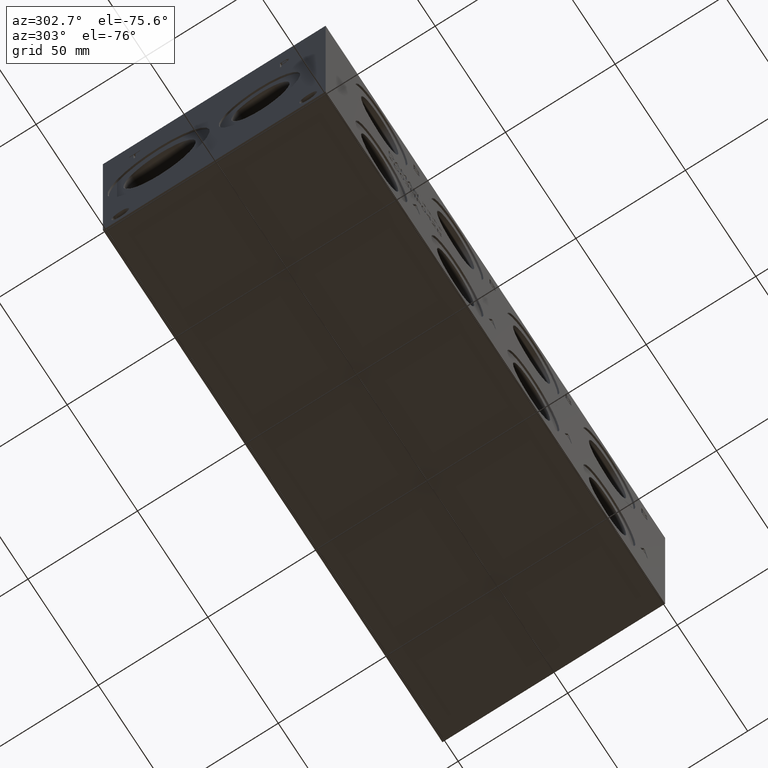
[diagram: clean part render]
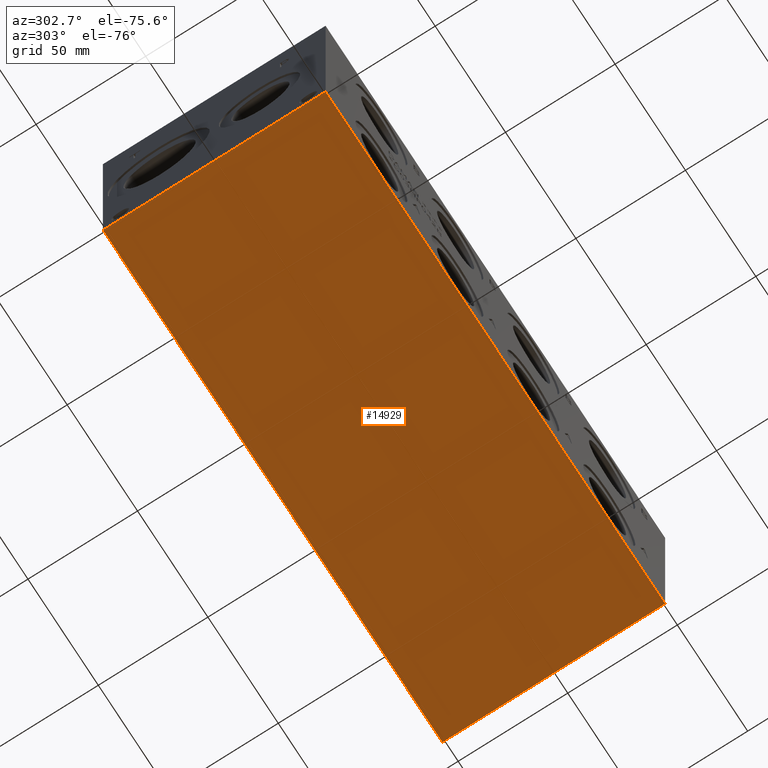
[diagram: same view with one face highlighted and labeled with its STEP entity id]
A machine part, auxiliary view. The second image highlights one B-rep face of the part: STEP entity #14929.
In plain terms, the highlighted planar face has unit normal (0, 0, 1).
Its self-contained STEP definition (entity closure, byte-faithful):
#2022=FACE_OUTER_BOUND('',#2943,.T.);
#2943=EDGE_LOOP('',(#13213,#13214,#13215,#13216));
#2977=LINE('',#19402,#4296);
#3339=LINE('',#21119,#4658);
#4054=LINE('',#24442,#5373);
#4261=LINE('',#25737,#5580);
#4296=VECTOR('',#16027,10.);
#4658=VECTOR('',#16519,10.);
#5373=VECTOR('',#17860,10.);
#5580=VECTOR('',#19321,10.);
#5604=VERTEX_POINT('',#19400);
#5605=VERTEX_POINT('',#19401);
#6047=VERTEX_POINT('',#21118);
#6566=VERTEX_POINT('',#24441);
#7061=EDGE_CURVE('',#5604,#5605,#2977,.T.);
#7579=EDGE_CURVE('',#5605,#6047,#3339,.T.);
#8490=EDGE_CURVE('',#6566,#5604,#4054,.T.);
#9089=EDGE_CURVE('',#6047,#6566,#4261,.T.);
#13213=ORIENTED_EDGE('',*,*,#7061,.F.);
#13214=ORIENTED_EDGE('',*,*,#8490,.F.);
#13215=ORIENTED_EDGE('',*,*,#9089,.F.);
#13216=ORIENTED_EDGE('',*,*,#7579,.F.);
#13642=PLANE('',#15965);
#14929=ADVANCED_FACE('',(#2022),#13642,.F.);
#15965=AXIS2_PLACEMENT_3D('',#25742,#19329,#19330);
#16027=DIRECTION('',(1.,0.,0.));
#16519=DIRECTION('',(0.,1.,0.));
#17860=DIRECTION('',(0.,-1.,0.));
#19321=DIRECTION('',(-1.,0.,0.));
#19329=DIRECTION('center_axis',(0.,0.,1.));
#19330=DIRECTION('ref_axis',(1.,0.,0.));
#19400=CARTESIAN_POINT('',(0.,0.,0.));
#19401=CARTESIAN_POINT('',(241.3,0.,0.));
#19402=CARTESIAN_POINT('',(0.,0.,0.));
#21118=CARTESIAN_POINT('',(241.3,101.6,0.));
#21119=CARTESIAN_POINT('',(241.3,0.,0.));
#24441=CARTESIAN_POINT('',(0.,101.6,0.));
#24442=CARTESIAN_POINT('',(0.,101.6,0.));
#25737=CARTESIAN_POINT('',(241.3,101.6,0.));
#25742=CARTESIAN_POINT('Origin',(120.65,50.8,0.));